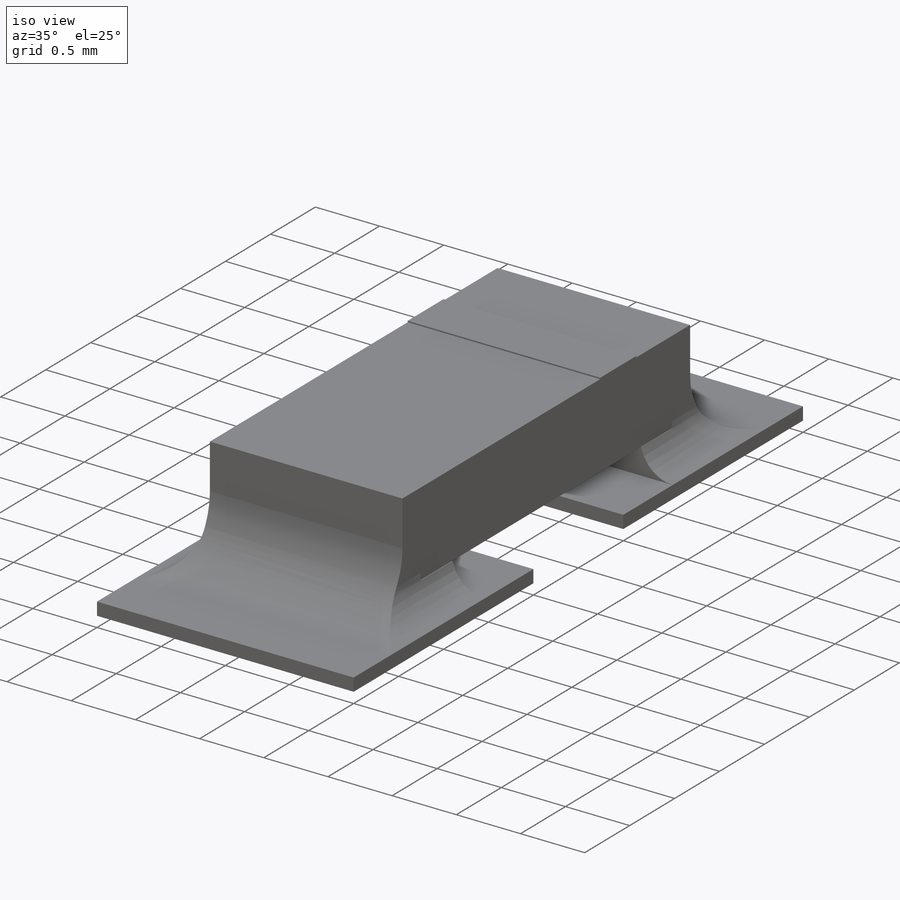
[diagram: iso view]
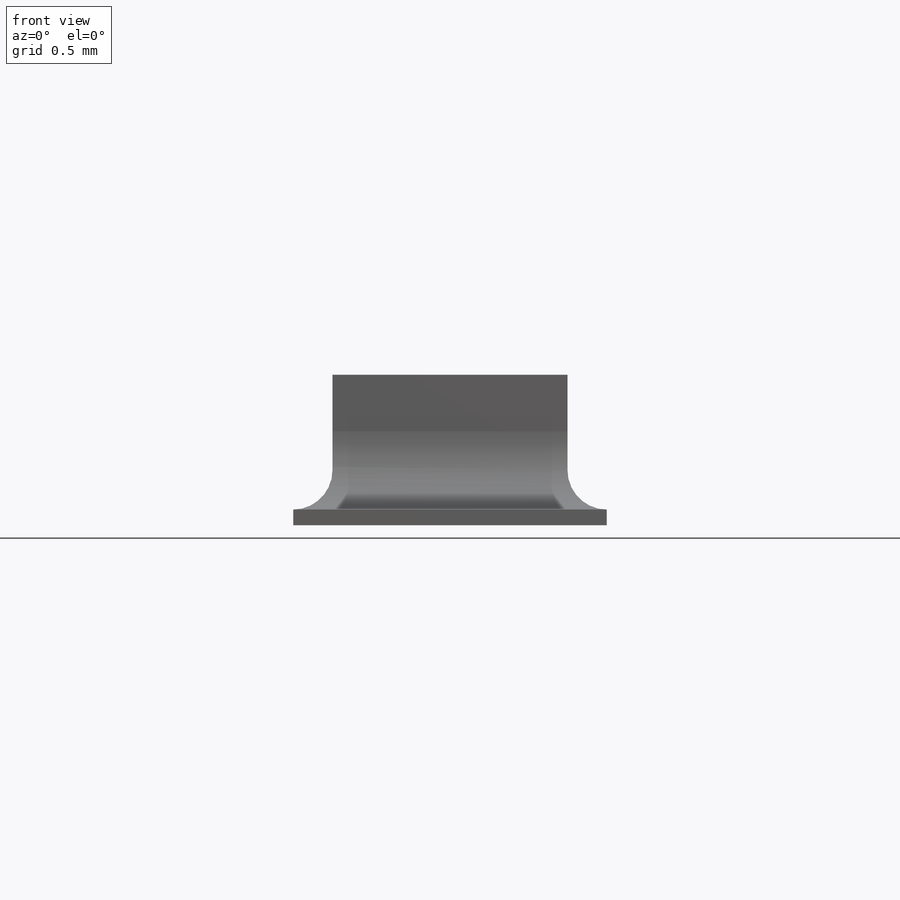
[diagram: front view]
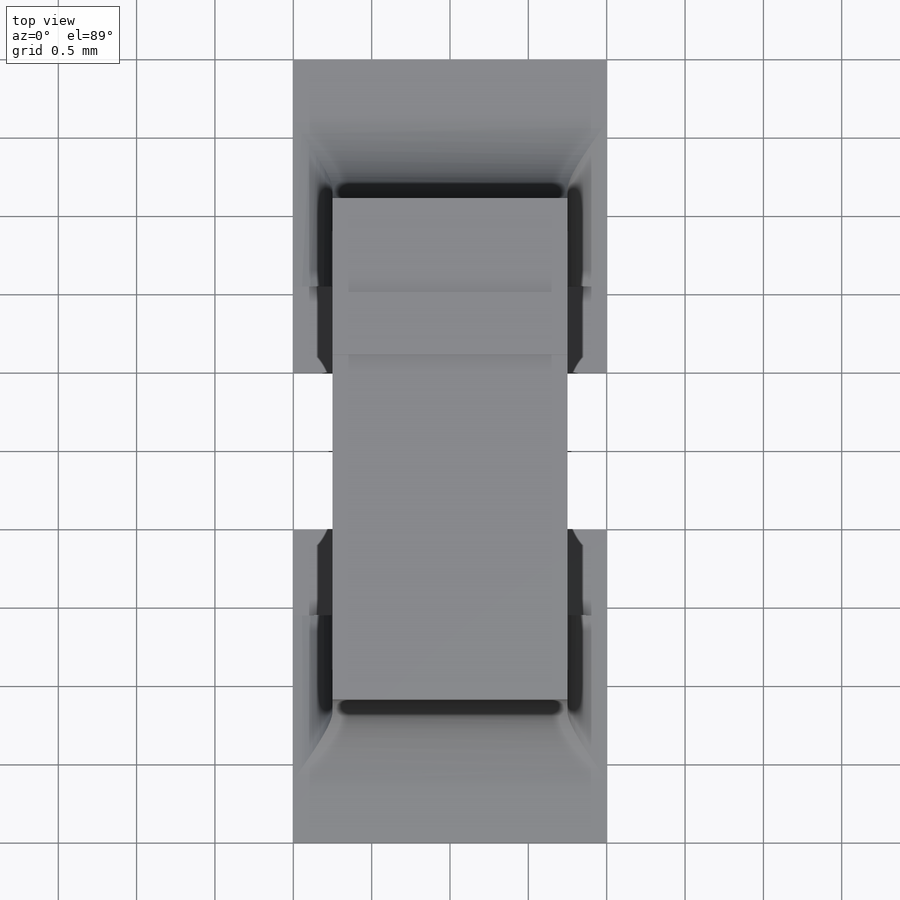
[diagram: top view]
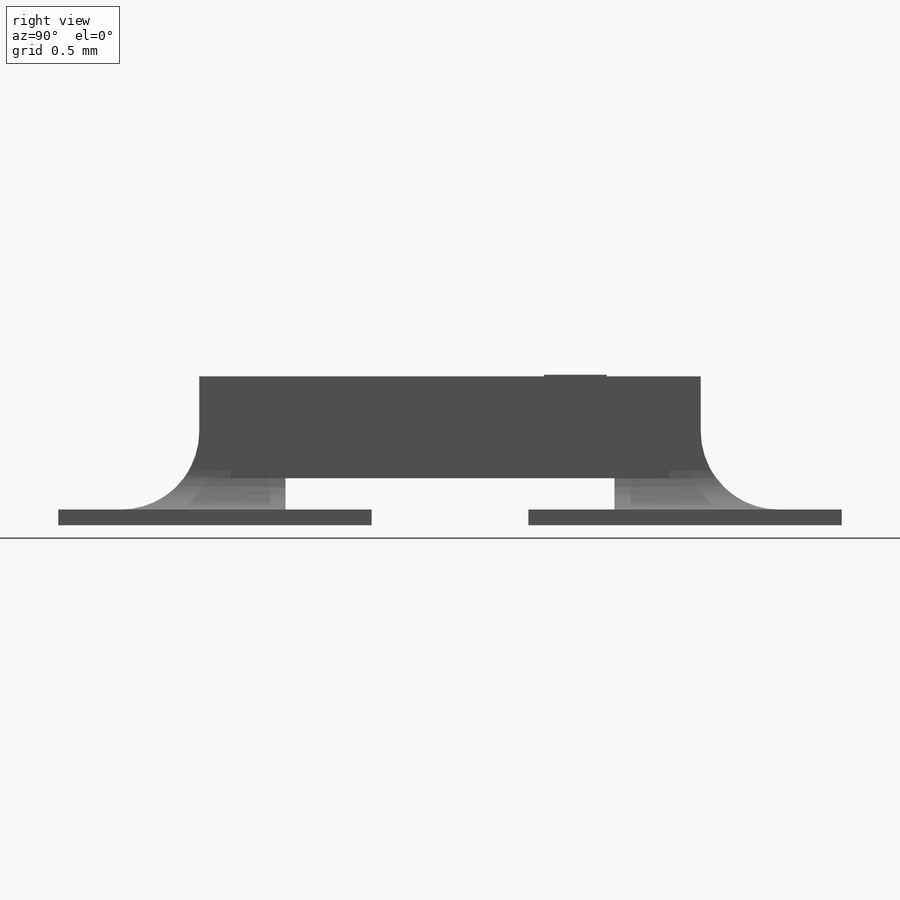
[diagram: right view]
SOLIDWORKS PART (.sldprt)
format: sldprt  version: not decoded by parser v0  size: 291,328 bytes
history: native  units: mm
features: sketch x5, extrude x5, fillet x4, material x1 (+13 scaffold rows collapsed)
feature tree (28):
  scaffold x13  (default folders/planes/origin — collapsed)
  material  "6063-O"
  sketch  "Sketch1"  dims[D1=1.5mm D2=0.75mm D3=0.3mm D4=0.4mm]
  extrude  "Boss-Extrude1"  Depth=2.8mm
  sketch  "Sketch3"  dims[D1=0.2mm D2=0.55mm D3=0.95mm]
  extrude  "Boss-Extrude2"  Depth=1.5mm
  sketch  "Sketch5"  dims[D1=0.25mm]
  extrude  "Boss-Extrude4"  Depth=2.8mm
  sketch  "Sketch4"  dims[c1.D1=2.0mm c1.D2=0.8mm c1.D3=3.0mm c1.D4=~0.883638mm c1.D5=~0.883638mm c1.D6=2.0mm c1.D7=~1.232723mm c2.D5=~0.716362mm]
  extrude  "Boss-Extrude3"  Depth=0.1mm
  sketch  "Sketch6"  dims[D1=0.4mm D2=1.0mm]
  extrude  "Boss-Extrude5"  Depth=0.01mm
  fillet  "Fillet1"  Radius=0.5mm
  fillet  "Fillet2"  Radius=0.5mm
  fillet  "Fillet3"  Radius=0.25mm
  fillet  "Fillet4"  Radius=0.25mm
decode coverage: 14 of 14 modeling features carry decoded parameters
note: ~ marks probable driven/reference dimensions
note: suppression state not decoded; provenance and decode notes live in map.json
